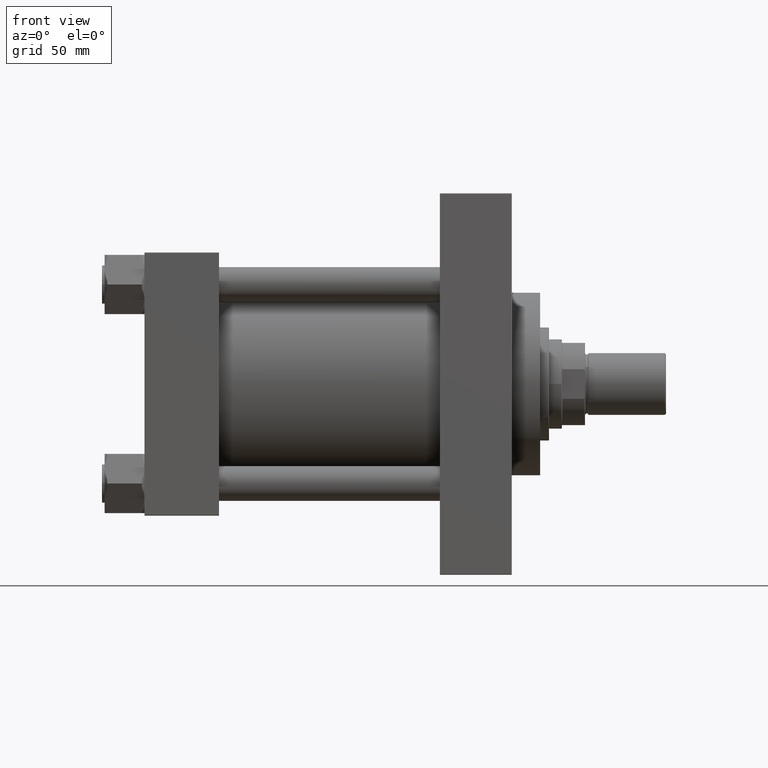
[diagram: clean part render]
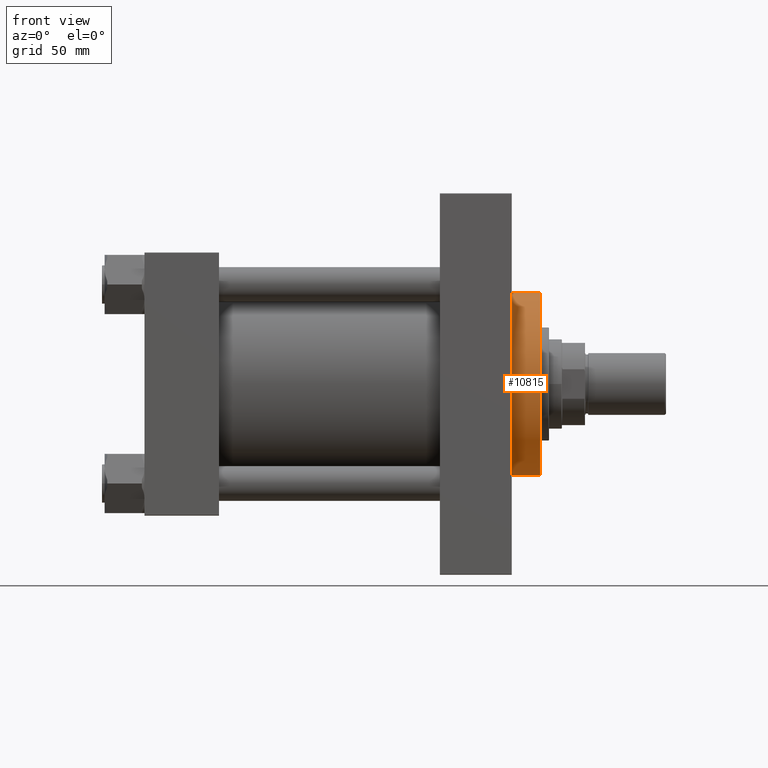
[diagram: same view with one face highlighted and labeled with its STEP entity id]
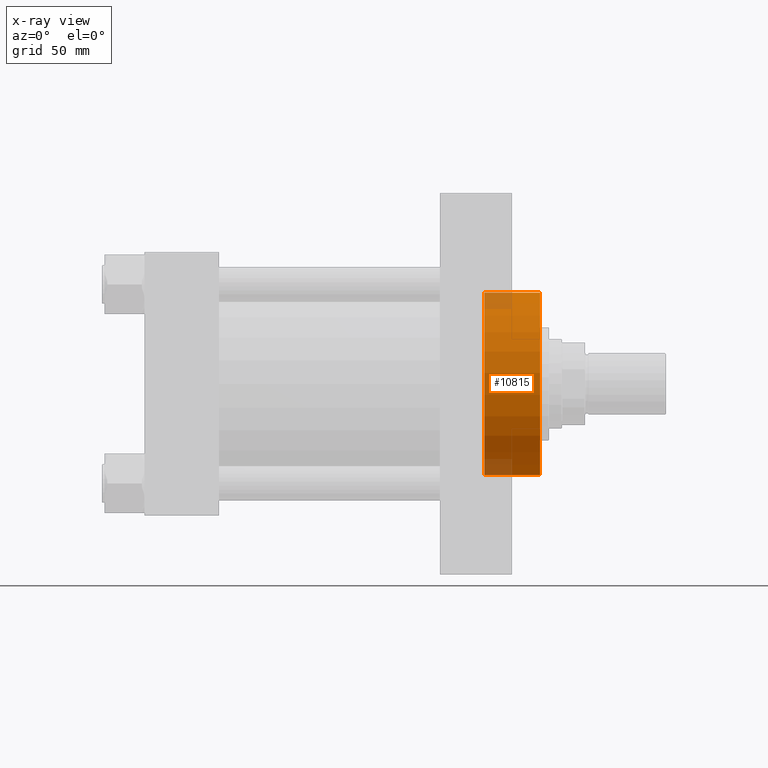
[diagram: x-ray of the same camera — body ghosted, the highlighted face saturated]
A machine part, front view. The second image highlights one B-rep face of the part: STEP entity #10815.
The next image is the same camera in x-ray: the body ghosted, the highlighted face saturated — about 9% of this face is hidden behind the body in this view.
In plain terms, the highlighted cylindrical surface (partial cylindrical patch) has radius 71 mm, axis along (-1, 0, 0).
Its self-contained STEP definition (entity closure, byte-faithful):
#340 = EDGE_CURVE ( 'NONE', #9331, #4857, #5571, .T. ) ;
#670 = EDGE_CURVE ( 'NONE', #18022, #9331, #5440, .T. ) ;
#1319 = DIRECTION ( 'NONE',  ( -0.000000000000000000, -0.000000000000000000, -1.000000000000000000 ) ) ;
#2886 = CARTESIAN_POINT ( 'NONE',  ( 0.000000000000000000, 0.000000000000000000, 43.25999999999999801 ) ) ;
#4857 = VERTEX_POINT ( 'NONE', #7465 ) ;
#5440 = LINE ( 'NONE', #23716, #31993 ) ;
#5571 = CIRCLE ( 'NONE', #40579, 71.00000000000001421 ) ;
#5573 = ORIENTED_EDGE ( 'NONE', *, *, #340, .T. ) ;
#7465 = CARTESIAN_POINT ( 'NONE',  ( -71.00000000000001421, 0.000000000000000000, 0.000000000000000000 ) ) ;
#8694 = LINE ( 'NONE', #33742, #29430 ) ;
#9331 = VERTEX_POINT ( 'NONE', #28955 ) ;
#10506 = EDGE_LOOP ( 'NONE', ( #32991, #27742, #5573, #44581 ) ) ;
#10815 = ADVANCED_FACE ( 'NONE', ( #43801 ), #14575, .T. ) ;
#14352 = AXIS2_PLACEMENT_3D ( 'NONE', #2886, #40875, #29389 ) ;
#14575 = CYLINDRICAL_SURFACE ( 'NONE', #14352, 71.00000000000001421 ) ;
#18022 = VERTEX_POINT ( 'NONE', #21599 ) ;
#18918 = CARTESIAN_POINT ( 'NONE',  ( 0.000000000000000000, 0.000000000000000000, 0.000000000000000000 ) ) ;
#21089 = CARTESIAN_POINT ( 'NONE',  ( 0.000000000000000000, 0.000000000000000000, 43.25999999999999801 ) ) ;
#21599 = CARTESIAN_POINT ( 'NONE',  ( 71.00000000000001421, 8.694992273946208141E-15, 43.25999999999999801 ) ) ;
#22813 = DIRECTION ( 'NONE',  ( 1.000000000000000000, 0.000000000000000000, 0.000000000000000000 ) ) ;
#23716 = CARTESIAN_POINT ( 'NONE',  ( 71.00000000000001421, 8.694992273946208141E-15, 43.25999999999999801 ) ) ;
#26436 = DIRECTION ( 'NONE',  ( 0.000000000000000000, 0.000000000000000000, 1.000000000000000000 ) ) ;
#26926 = CIRCLE ( 'NONE', #28445, 71.00000000000001421 ) ;
#26927 = DIRECTION ( 'NONE',  ( -0.000000000000000000, -0.000000000000000000, -1.000000000000000000 ) ) ;
#27742 = ORIENTED_EDGE ( 'NONE', *, *, #670, .T. ) ;
#28445 = AXIS2_PLACEMENT_3D ( 'NONE', #21089, #31801, #32506 ) ;
#28955 = CARTESIAN_POINT ( 'NONE',  ( 71.00000000000001421, 8.694992273946208141E-15, 0.000000000000000000 ) ) ;
#29389 = DIRECTION ( 'NONE',  ( -1.000000000000000000, 0.000000000000000000, 0.000000000000000000 ) ) ;
#29430 = VECTOR ( 'NONE', #26927, 1000.000000000000000 ) ;
#30468 = VERTEX_POINT ( 'NONE', #43433 ) ;
#31245 = EDGE_CURVE ( 'NONE', #18022, #30468, #26926, .T. ) ;
#31801 = DIRECTION ( 'NONE',  ( 0.000000000000000000, 0.000000000000000000, 1.000000000000000000 ) ) ;
#31993 = VECTOR ( 'NONE', #1319, 1000.000000000000000 ) ;
#32506 = DIRECTION ( 'NONE',  ( 1.000000000000000000, 0.000000000000000000, 0.000000000000000000 ) ) ;
#32991 = ORIENTED_EDGE ( 'NONE', *, *, #31245, .F. ) ;
#33742 = CARTESIAN_POINT ( 'NONE',  ( -71.00000000000001421, 0.000000000000000000, 43.25999999999999801 ) ) ;
#40284 = EDGE_CURVE ( 'NONE', #30468, #4857, #8694, .T. ) ;
#40579 = AXIS2_PLACEMENT_3D ( 'NONE', #18918, #26436, #22813 ) ;
#40875 = DIRECTION ( 'NONE',  ( -0.000000000000000000, -0.000000000000000000, -1.000000000000000000 ) ) ;
#43433 = CARTESIAN_POINT ( 'NONE',  ( -71.00000000000001421, 0.000000000000000000, 43.25999999999999801 ) ) ;
#43801 = FACE_OUTER_BOUND ( 'NONE', #10506, .T. ) ;
#44581 = ORIENTED_EDGE ( 'NONE', *, *, #40284, .F. ) ;